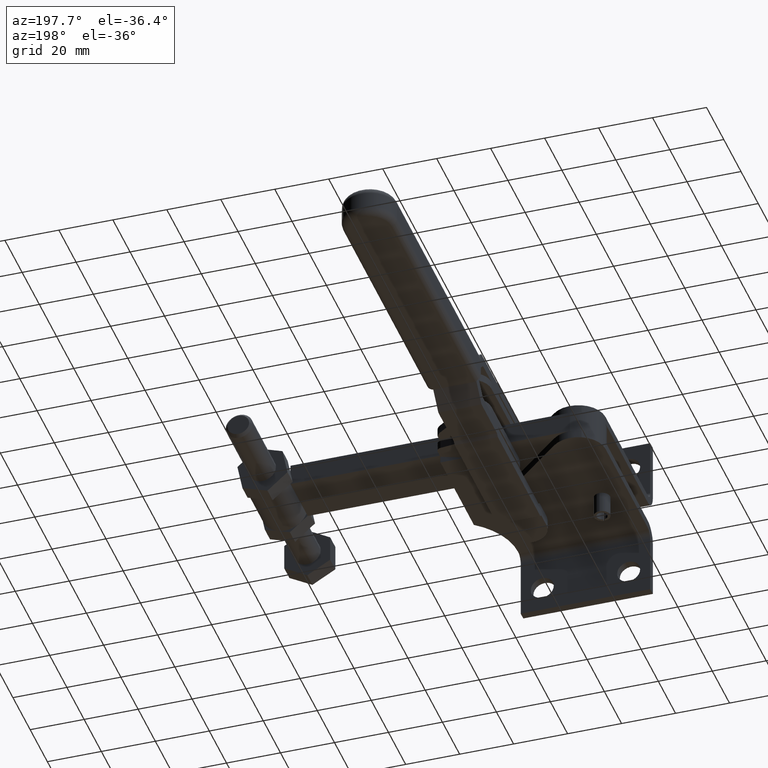
[diagram: clean part render]
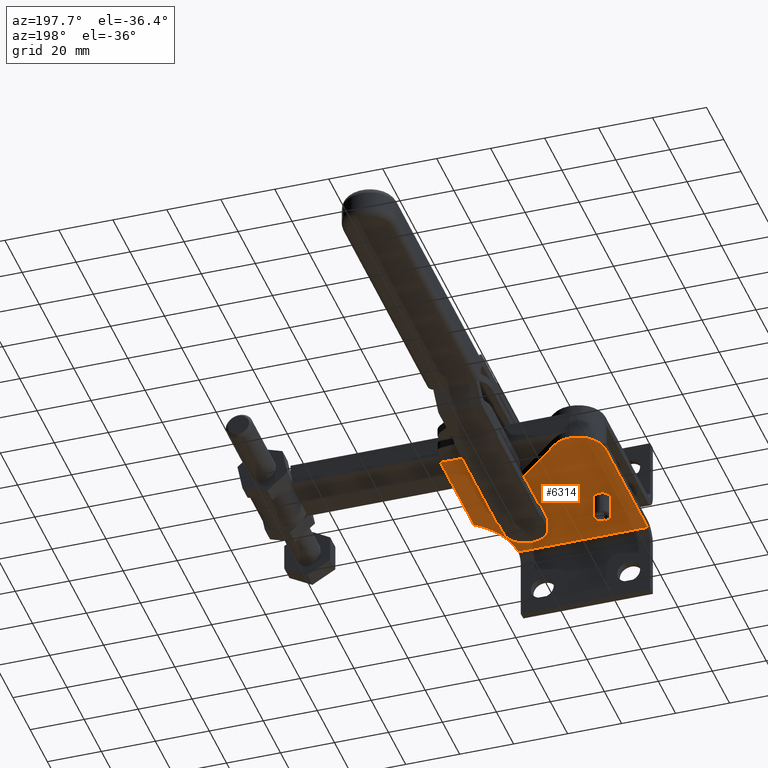
[diagram: same view with one face highlighted and labeled with its STEP entity id]
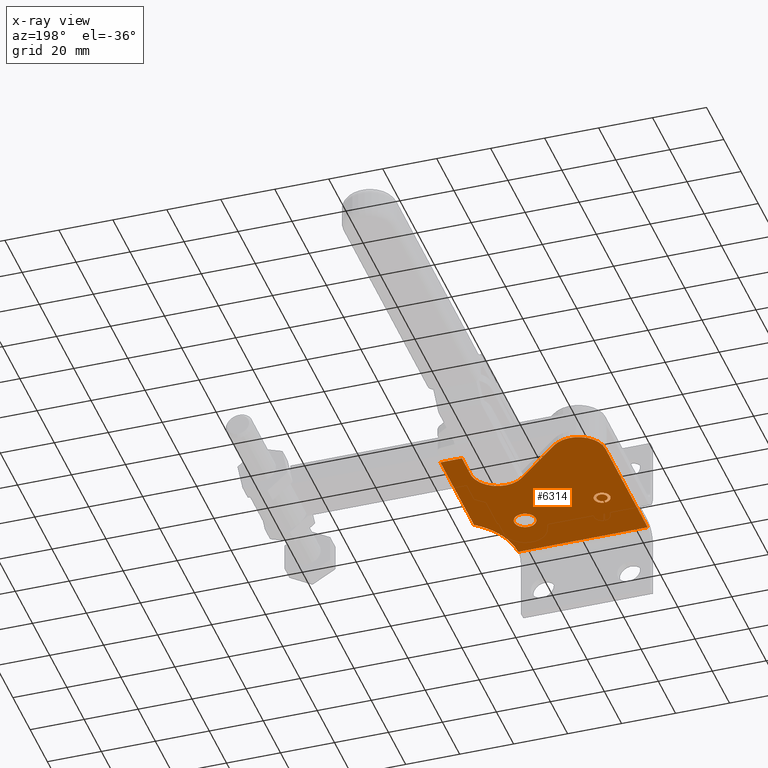
[diagram: x-ray of the same camera — body ghosted, the highlighted face saturated]
A machine part, auxiliary view. The second image highlights one B-rep face of the part: STEP entity #6314.
The next image is the same camera in x-ray: the body ghosted, the highlighted face saturated — about 0% of this face is hidden behind the body in this view.
In plain terms, the highlighted face is a freeform B-spline surface patch.
Its self-contained STEP definition (entity closure, byte-faithful):
#3590=CARTESIAN_POINT('',(-1002.357969662263800,94.711051739144338,-7.000000000000512));
#3591=VERTEX_POINT('',#3590);
#3607=CARTESIAN_POINT('',(-1002.107969662263500,90.726738255845945,-7.000000000000513));
#3608=VERTEX_POINT('',#3607);
#3615=CARTESIAN_POINT('',(-1002.357969662263700,92.711051739144352,-7.000000000000513));
#3616=DIRECTION('',(0.0,0.0,1.0));
#3617=DIRECTION('',(0.0,1.0,0.0));
#3618=AXIS2_PLACEMENT_3D('',#3615,#3616,#3617);
#3619=CIRCLE('',#3618,1.999999999999992);
#3620=EDGE_CURVE('',#3608,#3591,#3619,.T.);
#3674=CARTESIAN_POINT('',(-1002.357969662263800,95.711051739144338,-7.000000000000513));
#3675=VERTEX_POINT('',#3674);
#3691=CARTESIAN_POINT('',(-1002.607969662263500,89.721486553368976,-7.000000000000513));
#3692=VERTEX_POINT('',#3691);
#3699=CARTESIAN_POINT('',(-1002.357969662263700,92.711051739144352,-7.000000000000513));
#3700=DIRECTION('',(0.0,0.0,-1.0));
#3701=DIRECTION('',(0.0,1.0,0.0));
#3702=AXIS2_PLACEMENT_3D('',#3699,#3700,#3701);
#3703=CIRCLE('',#3702,2.999999999999989);
#3704=EDGE_CURVE('',#3692,#3675,#3703,.T.);
#3737=CARTESIAN_POINT('',(-962.871136681758000,116.929971925459030,-7.000000000000495));
#3738=VERTEX_POINT('',#3737);
#3754=CARTESIAN_POINT('',(-962.357969662263140,120.092249585627390,-7.000000000000492));
#3755=VERTEX_POINT('',#3754);
#3762=CARTESIAN_POINT('',(-972.357969662263140,120.092249585627390,-7.000000000000499));
#3763=DIRECTION('',(-4.619856E-016,1.539952E-016,1.0));
#3764=DIRECTION('',(0.948683298050513,-0.316227766016839,4.869756E-016));
#3765=AXIS2_PLACEMENT_3D('',#3762,#3763,#3764);
#3766=CIRCLE('',#3765,9.999999999999979);
#3767=EDGE_CURVE('',#3738,#3755,#3766,.T.);
#3800=CARTESIAN_POINT('',(-1006.440452566901700,129.220958877380240,-7.000000000000514));
#3801=VERTEX_POINT('',#3800);
#3817=CARTESIAN_POINT('',(-995.691302995596630,127.545809510626670,-7.000000000000509));
#3818=VERTEX_POINT('',#3817);
#3825=CARTESIAN_POINT('',(-1002.357969662263100,120.092249585627390,-7.000000000000513));
#3826=DIRECTION('',(8.555289E-017,-1.913021E-016,-1.000000000000000));
#3827=DIRECTION('',(-0.408248290463861,0.912870929175278,-2.095609E-016));
#3828=AXIS2_PLACEMENT_3D('',#3825,#3826,#3827);
#3829=CIRCLE('',#3828,10.000000000000037);
#3830=EDGE_CURVE('',#3801,#3818,#3829,.T.);
#3863=CARTESIAN_POINT('',(-961.718649437261320,82.272589473126331,-7.000000000000493));
#3864=VERTEX_POINT('',#3863);
#3880=CARTESIAN_POINT('',(-964.357969662263490,71.092249585627357,-7.000000000000495));
#3881=VERTEX_POINT('',#3880);
#3888=CARTESIAN_POINT('',(-939.357969662263490,71.092249585627357,-7.000000000000481));
#3889=DIRECTION('',(-4.106539E-016,2.053269E-016,1.000000000000000));
#3890=DIRECTION('',(-0.894427190999916,0.447213595499959,-4.591250E-016));
#3891=AXIS2_PLACEMENT_3D('',#3888,#3889,#3890);
#3892=CIRCLE('',#3891,24.999999999999993);
#3893=EDGE_CURVE('',#3864,#3881,#3892,.T.);
#3924=CARTESIAN_POINT('',(-968.357969662263260,88.092249585627357,-7.000000000000497));
#3925=VERTEX_POINT('',#3924);
#3934=CARTESIAN_POINT('',(-976.357969662263490,88.092249585627357,-7.000000000000499));
#3935=VERTEX_POINT('',#3934);
#3936=CARTESIAN_POINT('',(-972.357969662263260,88.092249585627357,-7.000000000000499));
#3937=DIRECTION('',(0.0,0.0,-1.0));
#3938=DIRECTION('',(1.0,0.0,0.0));
#3939=AXIS2_PLACEMENT_3D('',#3936,#3937,#3938);
#3940=CIRCLE('',#3939,4.0);
#3941=EDGE_CURVE('',#3925,#3935,#3940,.T.);
#4123=CARTESIAN_POINT('',(-1012.357969662263300,71.092249582466422,-7.000000000000518));
#4124=VERTEX_POINT('',#4123);
#4132=CARTESIAN_POINT('',(-964.357969662263490,71.092249585627357,-7.000000000000495));
#4133=DIRECTION('',(-1.0,-6.585280E-011,-4.810966E-016));
#4134=VECTOR('',#4133,47.999999999999773);
#4135=LINE('',#4132,#4134);
#4136=EDGE_CURVE('',#3881,#4124,#4135,.T.);
#5550=CARTESIAN_POINT('',(-1012.357969662263100,120.092249585627400,-7.000000000000518));
#5551=VERTEX_POINT('',#5550);
#5558=CARTESIAN_POINT('',(-1012.357969662263300,71.092249582466422,-7.000000000000518));
#5559=DIRECTION('',(0.0,1.0,0.0));
#5560=VECTOR('',#5559,49.000000003160977);
#5561=LINE('',#5558,#5560);
#5562=EDGE_CURVE('',#4124,#5551,#5561,.T.);
#5861=CARTESIAN_POINT('',(-972.357969662263260,88.092249585627357,-7.000000000000499));
#5862=DIRECTION('',(0.0,0.0,-1.0));
#5863=DIRECTION('',(1.0,0.0,0.0));
#5864=AXIS2_PLACEMENT_3D('',#5861,#5862,#5863);
#5865=CIRCLE('',#5864,4.0);
#5866=EDGE_CURVE('',#3935,#3925,#5865,.T.);
#5876=CARTESIAN_POINT('',(-954.357969662263370,130.092249585627370,-7.000000000000489));
#5877=VERTEX_POINT('',#5876);
#5878=CARTESIAN_POINT('',(-954.357969662263490,91.092249585627357,-7.000000000000489));
#5879=VERTEX_POINT('',#5878);
#5880=CARTESIAN_POINT('',(-954.357969662263370,130.092249585627370,-7.000000000000489));
#5881=DIRECTION('',(0.0,-1.0,0.0));
#5882=VECTOR('',#5881,39.000000000000014);
#5883=LINE('',#5880,#5882);
#5884=EDGE_CURVE('',#5877,#5879,#5883,.T.);
#5929=CARTESIAN_POINT('',(-939.357969662263490,71.092249585627357,-7.000000000000481));
#5930=DIRECTION('',(-4.106539E-016,2.053269E-016,1.000000000000000));
#5931=DIRECTION('',(-0.894427190999916,0.447213595499959,-4.591250E-016));
#5932=AXIS2_PLACEMENT_3D('',#5929,#5930,#5931);
#5933=CIRCLE('',#5932,24.999999999999993);
#5934=EDGE_CURVE('',#5879,#3864,#5933,.T.);
#5968=CARTESIAN_POINT('',(-1002.357969662263100,120.092249585627390,-7.000000000000513));
#5969=DIRECTION('',(8.555289E-017,-1.913021E-016,-1.000000000000000));
#5970=DIRECTION('',(-0.408248290463861,0.912870929175278,-2.095609E-016));
#5971=AXIS2_PLACEMENT_3D('',#5968,#5969,#5970);
#5972=CIRCLE('',#5971,10.000000000000037);
#5973=EDGE_CURVE('',#5551,#3801,#5972,.T.);
#5985=CARTESIAN_POINT('',(-979.024636328930000,112.638689660628100,-7.000000000000501));
#5986=VERTEX_POINT('',#5985);
#5987=CARTESIAN_POINT('',(-995.691302995596630,127.545809510626670,-7.000000000000509));
#5988=DIRECTION('',(0.745355992499930,-0.666666666666667,3.574849E-016));
#5989=VECTOR('',#5988,22.360679774997848);
#5990=LINE('',#5987,#5989);
#5991=EDGE_CURVE('',#3818,#5986,#5990,.T.);
#6031=CARTESIAN_POINT('',(-972.357969662263140,120.092249585627390,-7.000000000000499));
#6032=DIRECTION('',(-4.619856E-016,1.539952E-016,1.0));
#6033=DIRECTION('',(0.948683298050513,-0.316227766016839,4.869756E-016));
#6034=AXIS2_PLACEMENT_3D('',#6031,#6032,#6033);
#6035=CIRCLE('',#6034,9.999999999999979);
#6036=EDGE_CURVE('',#5986,#3738,#6035,.T.);
#6048=CARTESIAN_POINT('',(-962.357969662263140,130.092249585627370,-7.000000000000492));
#6049=VERTEX_POINT('',#6048);
#6050=CARTESIAN_POINT('',(-962.357969662263140,120.092249585627390,-7.000000000000492));
#6051=DIRECTION('',(0.0,1.0,0.0));
#6052=VECTOR('',#6051,9.999999999999986);
#6053=LINE('',#6050,#6052);
#6054=EDGE_CURVE('',#3755,#6049,#6053,.T.);
#6072=CARTESIAN_POINT('',(-962.357969662263140,130.092249585627370,-7.000000000000492));
#6073=DIRECTION('',(1.0,0.0,0.0));
#6074=VECTOR('',#6073,7.999999999999773);
#6075=LINE('',#6072,#6074);
#6076=EDGE_CURVE('',#6049,#5877,#6075,.T.);
#6090=CARTESIAN_POINT('',(-1002.107969662263500,89.721486553369019,-7.000000000000513));
#6091=VERTEX_POINT('',#6090);
#6092=CARTESIAN_POINT('',(-1002.357969662263700,92.711051739144352,-7.000000000000513));
#6093=DIRECTION('',(0.0,0.0,-1.0));
#6094=DIRECTION('',(0.0,1.0,0.0));
#6095=AXIS2_PLACEMENT_3D('',#6092,#6093,#6094);
#6096=CIRCLE('',#6095,2.999999999999989);
#6097=EDGE_CURVE('',#3675,#6091,#6096,.T.);
#6139=CARTESIAN_POINT('',(-1002.607969662263500,90.726738255845873,-7.000000000000513));
#6140=VERTEX_POINT('',#6139);
#6141=CARTESIAN_POINT('',(-1002.607969662263500,90.726738255845873,-7.000000000000513));
#6142=DIRECTION('',(0.0,-1.0,0.0));
#6143=VECTOR('',#6142,1.005251702476897);
#6144=LINE('',#6141,#6143);
#6145=EDGE_CURVE('',#6140,#3692,#6144,.T.);
#6170=CARTESIAN_POINT('',(-1002.107969662263500,89.721486553369019,-7.000000000000513));
#6171=DIRECTION('',(0.0,1.0,0.0));
#6172=VECTOR('',#6171,1.005251702476926);
#6173=LINE('',#6170,#6172);
#6174=EDGE_CURVE('',#6091,#3608,#6173,.T.);
#6193=CARTESIAN_POINT('',(-1002.357969662263700,92.711051739144352,-7.000000000000513));
#6194=DIRECTION('',(0.0,0.0,1.0));
#6195=DIRECTION('',(0.0,1.0,0.0));
#6196=AXIS2_PLACEMENT_3D('',#6193,#6194,#6195);
#6197=CIRCLE('',#6196,1.999999999999992);
#6198=EDGE_CURVE('',#3591,#6140,#6197,.T.);
#6283=CARTESIAN_POINT('',(-954.357969662263260,130.092249585627400,-7.000000000000489));
#6284=CARTESIAN_POINT('',(-1012.357969662263300,130.092249585627430,-7.000000000000519));
#6285=CARTESIAN_POINT('',(-954.357969662263260,71.092249582466351,-7.000000000000489));
#6286=CARTESIAN_POINT('',(-1012.357969662263300,71.092249582466394,-7.000000000000519));
#6287=B_SPLINE_SURFACE_WITH_KNOTS('',1,1,((#6283,#6285),(#6284,#6286)),.UNSPECIFIED.,.F.,.F.,.U.,(2,2),(2,2),(0.0,58.0),(0.0,59.000000003161048),.UNSPECIFIED.);
#6288=ORIENTED_EDGE('',*,*,#4136,.T.);
#6289=ORIENTED_EDGE('',*,*,#5562,.T.);
#6290=ORIENTED_EDGE('',*,*,#5973,.T.);
#6291=ORIENTED_EDGE('',*,*,#3830,.T.);
#6292=ORIENTED_EDGE('',*,*,#5991,.T.);
#6293=ORIENTED_EDGE('',*,*,#6036,.T.);
#6294=ORIENTED_EDGE('',*,*,#3767,.T.);
#6295=ORIENTED_EDGE('',*,*,#6054,.T.);
#6296=ORIENTED_EDGE('',*,*,#6076,.T.);
#6297=ORIENTED_EDGE('',*,*,#5884,.T.);
#6298=ORIENTED_EDGE('',*,*,#5934,.T.);
#6299=ORIENTED_EDGE('',*,*,#3893,.T.);
#6300=EDGE_LOOP('',(#6288,#6289,#6290,#6291,#6292,#6293,#6294,#6295,#6296,#6297,#6298,#6299));
#6301=FACE_OUTER_BOUND('',#6300,.T.);
#6302=ORIENTED_EDGE('',*,*,#3620,.F.);
#6303=ORIENTED_EDGE('',*,*,#6174,.F.);
#6304=ORIENTED_EDGE('',*,*,#6097,.F.);
#6305=ORIENTED_EDGE('',*,*,#3704,.F.);
#6306=ORIENTED_EDGE('',*,*,#6145,.F.);
#6307=ORIENTED_EDGE('',*,*,#6198,.F.);
#6308=EDGE_LOOP('',(#6302,#6303,#6304,#6305,#6306,#6307));
#6309=FACE_BOUND('',#6308,.T.);
#6310=ORIENTED_EDGE('',*,*,#5866,.F.);
#6311=ORIENTED_EDGE('',*,*,#3941,.F.);
#6312=EDGE_LOOP('',(#6310,#6311));
#6313=FACE_BOUND('',#6312,.T.);
#6314=ADVANCED_FACE('',(#6301,#6309,#6313),#6287,.F.);